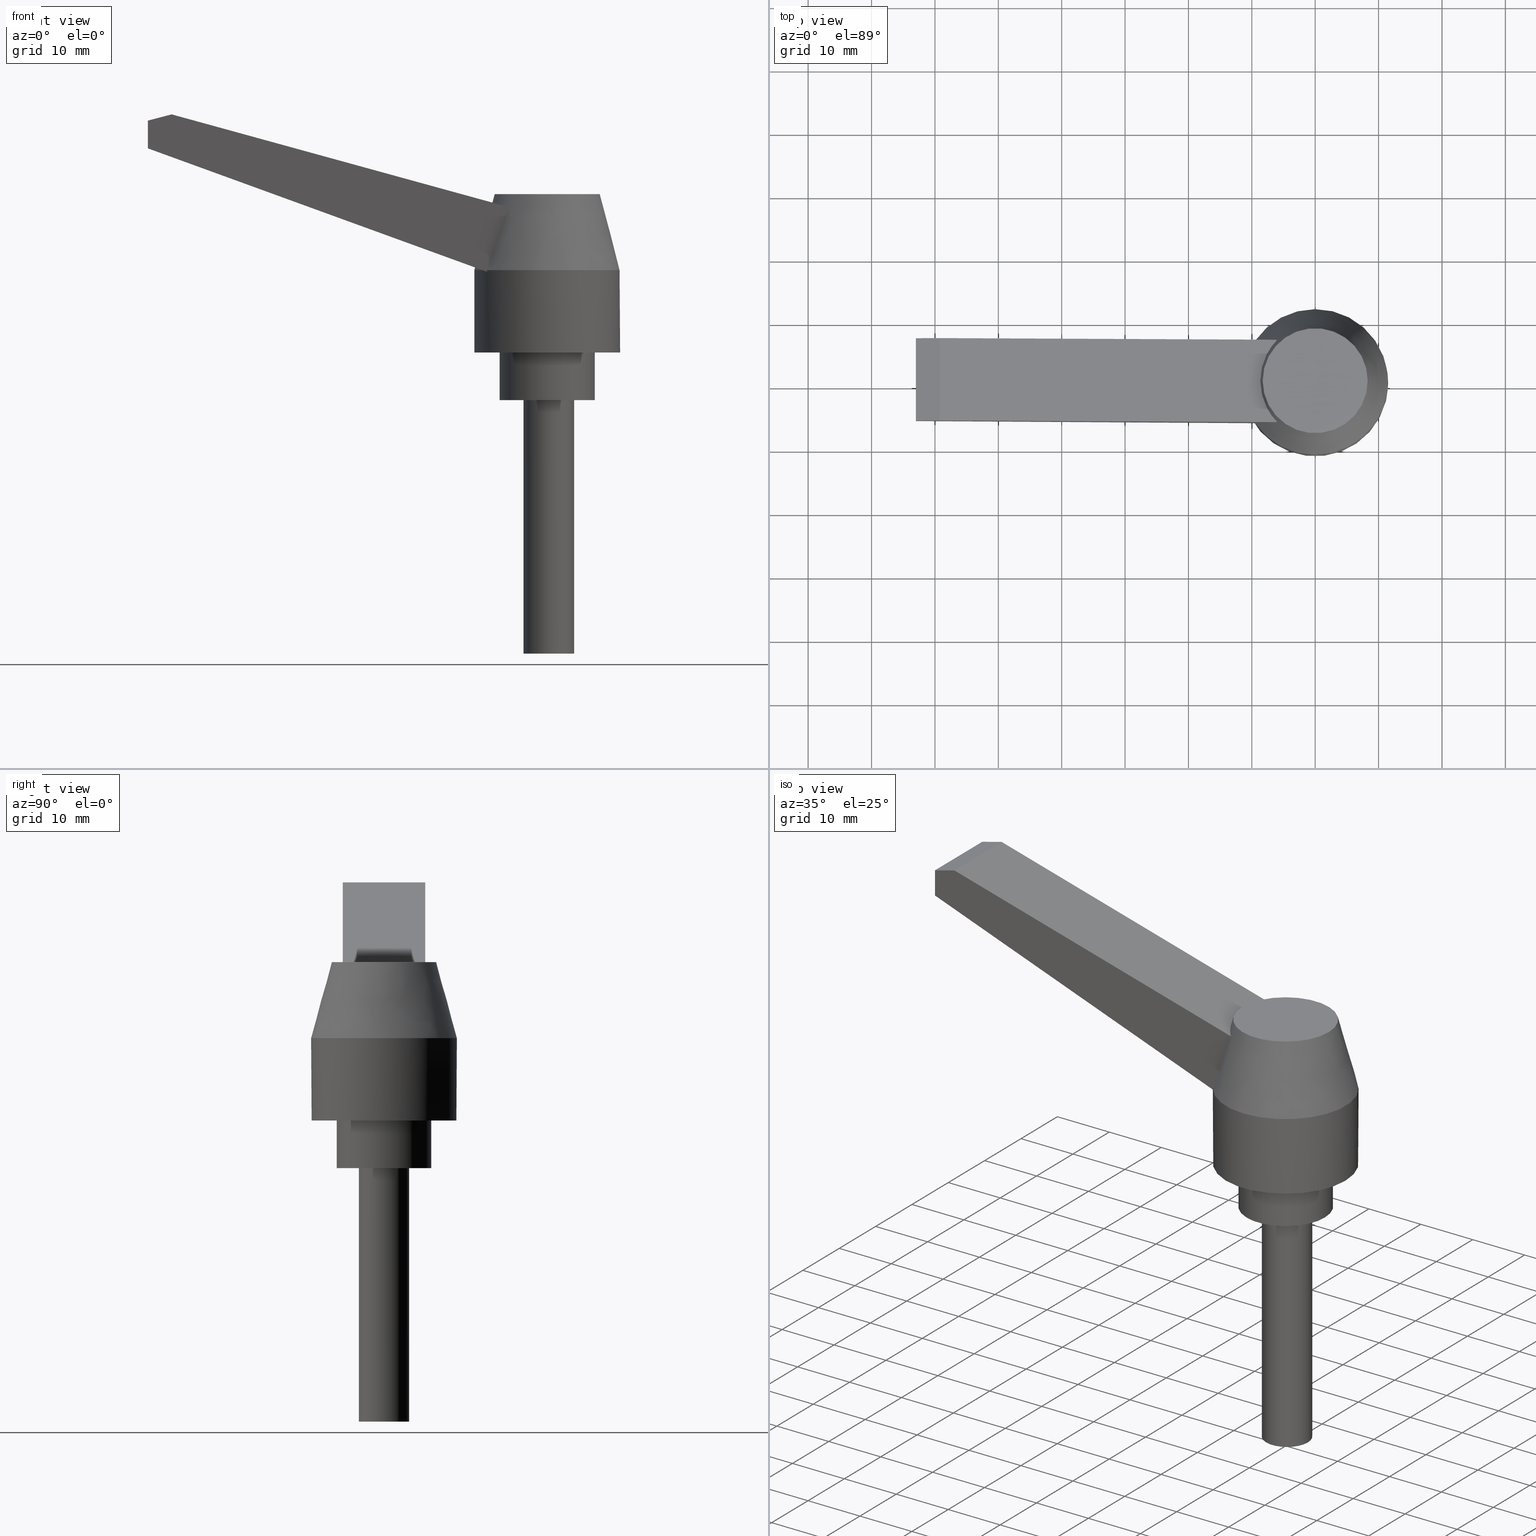
[diagram: canonical four-view strip — front | top / right | iso, engineering-drawing reading convention]
A machine part, canonical four-view strip (front | top / right | iso — engineering-drawing reading convention). The complete STEP part file that produces these views, byte-faithful:
ISO-10303-21;
HEADER;
/****************************************************************
 * Generated by software with PDE/Lib inside                    *
 * PDElib Version v4.4, created Mon 02/23/2004                  *
 * International Technegroup Inc. (www.iti-oh.com)              *
 ****************************************************************/
FILE_DESCRIPTION(('STEP AP203'),'2;1');
FILE_NAME('80LE00003.stp','2011-09-08T18:08:57',(''),(''),'2009.3.110','THINKDESIGN','');
FILE_SCHEMA(('CONFIG_CONTROL_DESIGN'));
ENDSEC;
DATA;
#2=CARTESIAN_POINT('',(0.253749506228030,2.775558E-017,1.421085E-014));
#3=DIRECTION('',(-8.327157E-016,-9.542551E-016,-1.0));
#4=DIRECTION('',(-1.0,-1.110223E-016,8.327157E-016));
#5=AXIS2_PLACEMENT_3D('',#2,#3,#4);
#6=CYLINDRICAL_SURFACE('',#5,4.0);
#7=CARTESIAN_POINT('',(-3.746250493771987,-1.532108E-014,1.421085E-014));
#8=VERTEX_POINT('',#7);
#9=CARTESIAN_POINT('',(4.253749506228030,4.718448E-016,1.087999E-014));
#10=VERTEX_POINT('',#9);
#11=CARTESIAN_POINT('',(0.253749506228030,2.775558E-017,1.421085E-014));
#12=DIRECTION('',(-8.327157E-016,-9.542551E-016,-1.0));
#13=DIRECTION('',(-1.0,-1.110223E-016,8.327157E-016));
#14=AXIS2_PLACEMENT_3D('',#11,#12,#13);
#15=CIRCLE('',#14,4.0);
#16=EDGE_CURVE('',#8,#10,#15,.T.);
#17=ORIENTED_EDGE('',*,*,#16,.T.);
#18=CARTESIAN_POINT('',(0.253749506228030,2.775558E-017,1.421085E-014));
#19=DIRECTION('',(-8.327157E-016,-9.542551E-016,-1.0));
#20=DIRECTION('',(-1.0,-1.110223E-016,8.327157E-016));
#21=AXIS2_PLACEMENT_3D('',#18,#19,#20);
#22=CIRCLE('',#21,4.0);
#23=EDGE_CURVE('',#10,#8,#22,.T.);
#24=ORIENTED_EDGE('',*,*,#23,.T.);
#25=CARTESIAN_POINT('',(-3.746250493771987,-1.777037E-014,-39.999999999999986));
#26=VERTEX_POINT('',#25);
#27=CARTESIAN_POINT('',(-3.746250493771987,-1.532108E-014,1.421085E-014));
#28=DIRECTION('',(0.0,0.0,-1.0));
#29=VECTOR('',#28,40.0);
#30=LINE('',#27,#29);
#31=EDGE_CURVE('',#8,#26,#30,.T.);
#32=ORIENTED_EDGE('',*,*,#31,.T.);
#33=CARTESIAN_POINT('',(4.253749506228029,-1.977449E-015,-39.999999999999986));
#34=VERTEX_POINT('',#33);
#35=CARTESIAN_POINT('',(0.253749506228030,-2.421538E-015,-39.999999999999986));
#36=DIRECTION('',(-8.327157E-016,-9.542551E-016,-1.0));
#37=DIRECTION('',(-1.0,-1.110223E-016,8.327157E-016));
#38=AXIS2_PLACEMENT_3D('',#35,#36,#37);
#39=CIRCLE('',#38,4.0);
#40=EDGE_CURVE('',#34,#26,#39,.T.);
#41=ORIENTED_EDGE('',*,*,#40,.F.);
#42=CARTESIAN_POINT('',(0.253749506228030,-2.421538E-015,-39.999999999999986));
#43=DIRECTION('',(-8.327157E-016,-9.542551E-016,-1.0));
#44=DIRECTION('',(-1.0,-1.110223E-016,8.327157E-016));
#45=AXIS2_PLACEMENT_3D('',#42,#43,#44);
#46=CIRCLE('',#45,4.0);
#47=EDGE_CURVE('',#26,#34,#46,.T.);
#48=ORIENTED_EDGE('',*,*,#47,.F.);
#49=ORIENTED_EDGE('',*,*,#31,.F.);
#50=EDGE_LOOP('',(#17,#24,#32,#41,#48,#49));
#51=FACE_OUTER_BOUND('',#50,.T.);
#52=ADVANCED_FACE('',(#51),#6,.T.);
#53=CARTESIAN_POINT('',(7.044616752715746,-6.790867246487554,1.462668E-014));
#54=DIRECTION('',(0.0,0.0,-1.0));
#55=DIRECTION('',(-1.0,0.0,0.0));
#56=AXIS2_PLACEMENT_3D('',#53,#54,#55);
#57=PLANE('',#56);
#58=ORIENTED_EDGE('',*,*,#23,.F.);
#59=ORIENTED_EDGE('',*,*,#16,.F.);
#60=EDGE_LOOP('',(#58,#59));
#61=FACE_OUTER_BOUND('',#60,.T.);
#62=ADVANCED_FACE('',(#61),#57,.F.);
#63=CARTESIAN_POINT('',(7.044616752715896,-6.790867246487546,-39.999999999999986));
#64=DIRECTION('',(0.0,0.0,-1.0));
#65=DIRECTION('',(-1.0,0.0,0.0));
#66=AXIS2_PLACEMENT_3D('',#63,#64,#65);
#67=PLANE('',#66);
#68=ORIENTED_EDGE('',*,*,#47,.T.);
#69=ORIENTED_EDGE('',*,*,#40,.T.);
#70=EDGE_LOOP('',(#68,#69));
#71=FACE_OUTER_BOUND('',#70,.T.);
#72=ADVANCED_FACE('',(#71),#67,.T.);
#73=CLOSED_SHELL('',(#52,#62,#72));
#74=MANIFOLD_SOLID_BREP('',#73);
#75=CARTESIAN_POINT('',(-16.569219381653024,-16.569219381653102,32.500000000000043));
#76=DIRECTION('',(0.0,0.0,-1.0));
#77=DIRECTION('',(0.0,1.0,0.0));
#78=AXIS2_PLACEMENT_3D('',#75,#76,#77);
#79=PLANE('',#78);
#80=CARTESIAN_POINT('',(8.284609690826677,4.310419E-014,32.500000000000007));
#81=VERTEX_POINT('',#80);
#82=CARTESIAN_POINT('',(-8.284609690826493,1.990051E-015,32.500000000000028));
#83=VERTEX_POINT('',#82);
#84=CARTESIAN_POINT('',(1.205831E-013,4.218442E-014,32.500000000000014));
#85=DIRECTION('',(-8.327157E-016,-1.072679E-015,-1.0));
#86=DIRECTION('',(-1.0,-1.110223E-016,8.327157E-016));
#87=AXIS2_PLACEMENT_3D('',#84,#85,#86);
#88=CIRCLE('',#87,8.284609690826557);
#89=EDGE_CURVE('',#81,#83,#88,.T.);
#90=ORIENTED_EDGE('',*,*,#89,.F.);
#91=CARTESIAN_POINT('',(1.205831E-013,4.218442E-014,32.500000000000014));
#92=DIRECTION('',(-8.327157E-016,-1.072679E-015,-1.0));
#93=DIRECTION('',(-1.0,-1.110223E-016,8.327157E-016));
#94=AXIS2_PLACEMENT_3D('',#91,#92,#93);
#95=CIRCLE('',#94,8.284609690826557);
#96=EDGE_CURVE('',#83,#81,#95,.T.);
#97=ORIENTED_EDGE('',*,*,#96,.F.);
#98=EDGE_LOOP('',(#90,#97));
#99=FACE_OUTER_BOUND('',#98,.T.);
#100=ADVANCED_FACE('',(#99),#79,.F.);
#101=CARTESIAN_POINT('',(14.999999999760041,-14.999999999759879,1.512934E-014));
#102=DIRECTION('',(0.0,0.0,1.0));
#103=DIRECTION('',(0.0,1.0,0.0));
#104=AXIS2_PLACEMENT_3D('',#101,#102,#103);
#105=PLANE('',#104);
#106=CARTESIAN_POINT('',(-7.499999999879919,3.952394E-014,2.842171E-014));
#107=VERTEX_POINT('',#106);
#108=CARTESIAN_POINT('',(7.499999999879975,8.326673E-016,-2.045622E-014));
#109=VERTEX_POINT('',#108);
#110=CARTESIAN_POINT('',(0.0,0.0,0.0));
#111=DIRECTION('',(-2.727496E-015,-1.072679E-015,-1.0));
#112=DIRECTION('',(-1.0,-1.110223E-016,2.727496E-015));
#113=AXIS2_PLACEMENT_3D('',#110,#111,#112);
#114=CIRCLE('',#113,7.499999999879975);
#115=EDGE_CURVE('',#107,#109,#114,.T.);
#116=ORIENTED_EDGE('',*,*,#115,.T.);
#117=CARTESIAN_POINT('',(0.0,0.0,0.0));
#118=DIRECTION('',(-2.727496E-015,-1.072679E-015,-1.0));
#119=DIRECTION('',(-1.0,-1.110223E-016,2.727496E-015));
#120=AXIS2_PLACEMENT_3D('',#117,#118,#119);
#121=CIRCLE('',#120,7.499999999879975);
#122=EDGE_CURVE('',#109,#107,#121,.T.);
#123=ORIENTED_EDGE('',*,*,#122,.T.);
#124=EDGE_LOOP('',(#116,#123));
#125=FACE_OUTER_BOUND('',#124,.T.);
#126=ADVANCED_FACE('',(#125),#105,.F.);
#127=CARTESIAN_POINT('',(0.0,0.0,0.0));
#128=DIRECTION('',(-2.727496E-015,-1.072679E-015,-1.0));
#129=DIRECTION('',(-1.0,-1.110223E-016,2.727496E-015));
#130=AXIS2_PLACEMENT_3D('',#127,#128,#129);
#131=CYLINDRICAL_SURFACE('',#130,7.499999999879975);
#132=CARTESIAN_POINT('',(-7.499999999879919,3.998318E-014,7.500000000000028));
#133=VERTEX_POINT('',#132);
#134=CARTESIAN_POINT('',(-7.499999999879919,3.952394E-014,2.842171E-014));
#135=DIRECTION('',(0.0,0.0,1.0));
#136=VECTOR('',#135,7.500000000000000);
#137=LINE('',#134,#136);
#138=EDGE_CURVE('',#107,#133,#137,.T.);
#139=ORIENTED_EDGE('',*,*,#138,.T.);
#140=CARTESIAN_POINT('',(7.499999999879975,1.291910E-015,7.500000000000008));
#141=VERTEX_POINT('',#140);
#142=CARTESIAN_POINT('',(0.0,4.592425E-016,7.500000000000014));
#143=DIRECTION('',(-8.327157E-016,-1.072679E-015,-1.0));
#144=DIRECTION('',(-1.0,-1.110223E-016,8.327157E-016));
#145=AXIS2_PLACEMENT_3D('',#142,#143,#144);
#146=CIRCLE('',#145,7.499999999879975);
#147=EDGE_CURVE('',#133,#141,#146,.T.);
#148=ORIENTED_EDGE('',*,*,#147,.T.);
#149=CARTESIAN_POINT('',(0.0,4.592425E-016,7.500000000000014));
#150=DIRECTION('',(-8.327157E-016,-1.072679E-015,-1.0));
#151=DIRECTION('',(-1.0,-1.110223E-016,8.327157E-016));
#152=AXIS2_PLACEMENT_3D('',#149,#150,#151);
#153=CIRCLE('',#152,7.499999999879975);
#154=EDGE_CURVE('',#141,#133,#153,.T.);
#155=ORIENTED_EDGE('',*,*,#154,.T.);
#156=ORIENTED_EDGE('',*,*,#138,.F.);
#157=ORIENTED_EDGE('',*,*,#122,.F.);
#158=ORIENTED_EDGE('',*,*,#115,.F.);
#159=EDGE_LOOP('',(#139,#148,#155,#156,#157,#158));
#160=FACE_OUTER_BOUND('',#159,.T.);
#161=ADVANCED_FACE('',(#160),#131,.T.);
#162=CARTESIAN_POINT('',(23.000000000000025,-23.000000000000021,7.500000000000030));
#163=DIRECTION('',(0.0,0.0,1.0));
#164=DIRECTION('',(0.0,1.0,0.0));
#165=AXIS2_PLACEMENT_3D('',#162,#163,#164);
#166=PLANE('',#165);
#167=CARTESIAN_POINT('',(-11.500000000000011,-4.289359E-016,7.500000000000028));
#168=VERTEX_POINT('',#167);
#169=CARTESIAN_POINT('',(11.500000000000000,1.735999E-015,7.499999999999976));
#170=VERTEX_POINT('',#169);
#171=CARTESIAN_POINT('',(0.0,4.592425E-016,7.500000000000000));
#172=DIRECTION('',(-2.068442E-015,-1.072679E-015,-1.0));
#173=DIRECTION('',(-1.0,-1.110223E-016,2.068442E-015));
#174=AXIS2_PLACEMENT_3D('',#171,#172,#173);
#175=CIRCLE('',#174,11.500000000000000);
#176=EDGE_CURVE('',#168,#170,#175,.T.);
#177=ORIENTED_EDGE('',*,*,#176,.T.);
#178=CARTESIAN_POINT('',(0.0,4.592425E-016,7.500000000000000));
#179=DIRECTION('',(-2.068442E-015,-1.072679E-015,-1.0));
#180=DIRECTION('',(-1.0,-1.110223E-016,2.068442E-015));
#181=AXIS2_PLACEMENT_3D('',#178,#179,#180);
#182=CIRCLE('',#181,11.500000000000000);
#183=EDGE_CURVE('',#170,#168,#182,.T.);
#184=ORIENTED_EDGE('',*,*,#183,.T.);
#185=EDGE_LOOP('',(#177,#184));
#186=FACE_OUTER_BOUND('',#185,.T.);
#187=ORIENTED_EDGE('',*,*,#154,.F.);
#188=ORIENTED_EDGE('',*,*,#147,.F.);
#189=EDGE_LOOP('',(#187,#188));
#190=FACE_BOUND('',#189,.T.);
#191=ADVANCED_FACE('',(#186,#190),#166,.F.);
#192=CARTESIAN_POINT('',(0.0,4.592425E-016,7.500000000000000));
#193=DIRECTION('',(-2.068442E-015,-1.072679E-015,-1.0));
#194=DIRECTION('',(-1.0,-1.110223E-016,2.068442E-015));
#195=AXIS2_PLACEMENT_3D('',#192,#193,#194);
#196=CYLINDRICAL_SURFACE('',#195,11.500000000000000);
#197=ORIENTED_EDGE('',*,*,#183,.F.);
#198=ORIENTED_EDGE('',*,*,#176,.F.);
#199=CARTESIAN_POINT('',(-11.500000000000011,3.670845E-016,20.500000000000028));
#200=VERTEX_POINT('',#199);
#201=CARTESIAN_POINT('',(-11.500000000000011,-4.289359E-016,7.500000000000028));
#202=DIRECTION('',(0.0,0.0,1.0));
#203=VECTOR('',#202,13.0);
#204=LINE('',#201,#203);
#205=EDGE_CURVE('',#168,#200,#204,.T.);
#206=ORIENTED_EDGE('',*,*,#205,.T.);
#207=CARTESIAN_POINT('',(-10.208130721623393,5.295664941274871,20.500000000000014));
#208=VERTEX_POINT('',#207);
#209=CARTESIAN_POINT('',(1.205831E-013,4.144963E-014,20.500000000000000));
#210=DIRECTION('',(-2.068442E-015,-1.072679E-015,-1.0));
#211=DIRECTION('',(-1.0,-1.110223E-016,2.068442E-015));
#212=AXIS2_PLACEMENT_3D('',#209,#210,#211);
#213=CIRCLE('',#212,11.500000000000028);
#214=EDGE_CURVE('',#200,#208,#213,.T.);
#215=ORIENTED_EDGE('',*,*,#214,.T.);
#216=CARTESIAN_POINT('',(-9.486832980505104,6.499999999999932,20.237469092189500));
#217=VERTEX_POINT('',#216);
#218=CARTESIAN_POINT('',(0.0,9.154488E-016,16.784544269830704));
#219=DIRECTION('',(-0.342020143325670,-1.045960E-015,-0.939692620785908));
#220=DIRECTION('',(-0.939692620785908,2.429873E-016,0.342020143325670));
#221=AXIS2_PLACEMENT_3D('',#218,#219,#220);
#222=ELLIPSE('',#221,12.238044383472985,11.500000000000000);
#223=EDGE_CURVE('',#208,#217,#222,.T.);
#224=ORIENTED_EDGE('',*,*,#223,.T.);
#225=CARTESIAN_POINT('',(-9.486832980505144,6.499999999999973,20.500000000000014));
#226=VERTEX_POINT('',#225);
#227=CARTESIAN_POINT('',(-9.486832980505117,6.499999999999986,20.237469092189500));
#228=DIRECTION('',(0.0,0.0,1.0));
#229=VECTOR('',#228,0.262530907810515);
#230=LINE('',#227,#229);
#231=EDGE_CURVE('',#217,#226,#230,.T.);
#232=ORIENTED_EDGE('',*,*,#231,.T.);
#233=CARTESIAN_POINT('',(-9.486832980505144,-6.500000000000132,20.500000000000028));
#234=VERTEX_POINT('',#233);
#235=CARTESIAN_POINT('',(1.205831E-013,4.144963E-014,20.500000000000000));
#236=DIRECTION('',(-2.068442E-015,-1.072679E-015,-1.0));
#237=DIRECTION('',(-1.0,-1.110223E-016,2.068442E-015));
#238=AXIS2_PLACEMENT_3D('',#235,#236,#237);
#239=CIRCLE('',#238,11.500000000000028);
#240=EDGE_CURVE('',#226,#234,#239,.T.);
#241=ORIENTED_EDGE('',*,*,#240,.T.);
#242=CARTESIAN_POINT('',(-9.486832980505023,-6.500000000000092,20.237469092189514));
#243=VERTEX_POINT('',#242);
#244=CARTESIAN_POINT('',(-9.486832980505117,-6.500000000000119,20.237469092189514));
#245=DIRECTION('',(0.0,0.0,1.0));
#246=VECTOR('',#245,0.262530907810515);
#247=LINE('',#244,#246);
#248=EDGE_CURVE('',#243,#234,#247,.T.);
#249=ORIENTED_EDGE('',*,*,#248,.F.);
#250=CARTESIAN_POINT('',(-10.208130721623391,-5.295664941275032,20.500000000000028));
#251=VERTEX_POINT('',#250);
#252=CARTESIAN_POINT('',(0.0,9.154488E-016,16.784544269830704));
#253=DIRECTION('',(-0.342020143325670,-1.045960E-015,-0.939692620785908));
#254=DIRECTION('',(-0.939692620785908,2.429873E-016,0.342020143325670));
#255=AXIS2_PLACEMENT_3D('',#252,#253,#254);
#256=ELLIPSE('',#255,12.238044383472985,11.500000000000000);
#257=EDGE_CURVE('',#243,#251,#256,.T.);
#258=ORIENTED_EDGE('',*,*,#257,.T.);
#259=CARTESIAN_POINT('',(1.205831E-013,4.144963E-014,20.500000000000000));
#260=DIRECTION('',(-2.068442E-015,-1.072679E-015,-1.0));
#261=DIRECTION('',(-1.0,-1.110223E-016,2.068442E-015));
#262=AXIS2_PLACEMENT_3D('',#259,#260,#261);
#263=CIRCLE('',#262,11.500000000000028);
#264=EDGE_CURVE('',#251,#200,#263,.T.);
#265=ORIENTED_EDGE('',*,*,#264,.T.);
#266=ORIENTED_EDGE('',*,*,#205,.F.);
#267=EDGE_LOOP('',(#197,#198,#206,#215,#224,#232,#241,#249,#258,#265,#266));
#268=FACE_OUTER_BOUND('',#267,.T.);
#269=ADVANCED_FACE('',(#268),#196,.T.);
#270=CARTESIAN_POINT('',(-11.500000000000011,3.670845E-016,20.500000000000028));
#271=CARTESIAN_POINT('',(-11.500000000000039,11.500000000000110,20.500000000000018));
#272=CARTESIAN_POINT('',(7.115116E-014,11.500000000000140,20.499999999999996));
#273=CARTESIAN_POINT('',(11.500000000000179,11.500000000000171,20.499999999999975));
#274=CARTESIAN_POINT('',(11.500000000000210,5.825746E-014,20.499999999999986));
#275=CARTESIAN_POINT('',(11.500000000000238,-11.500000000000052,20.499999999999996));
#276=CARTESIAN_POINT('',(1.290415E-013,-11.500000000000080,20.500000000000018));
#277=CARTESIAN_POINT('',(-11.499999999999982,-11.500000000000110,20.500000000000039));
#278=CARTESIAN_POINT('',(-11.500000000000011,3.670845E-016,20.500000000000028));
#279=CARTESIAN_POINT('',(-8.284609690826528,1.351526E-014,32.500000000000028));
#280=CARTESIAN_POINT('',(-8.284609690826557,8.284609690826663,32.500000000000021));
#281=CARTESIAN_POINT('',(9.191394E-014,8.284609690826692,32.500000000000007));
#282=CARTESIAN_POINT('',(8.284609690826741,8.284609690826720,32.499999999999993));
#283=CARTESIAN_POINT('',(8.284609690826770,7.085358E-014,32.500000000000000));
#284=CARTESIAN_POINT('',(8.284609690826798,-8.284609690826578,32.500000000000007));
#285=CARTESIAN_POINT('',(1.492523E-013,-8.284609690826606,32.500000000000021));
#286=CARTESIAN_POINT('',(-8.284609690826500,-8.284609690826635,32.500000000000036));
#287=CARTESIAN_POINT('',(-8.284609690826528,1.351526E-014,32.500000000000028));
#295=(BOUNDED_SURFACE()B_SPLINE_SURFACE(2,1,((#270,#279),(#271,#280),(#272,#281),(#273,#282),(#274,#283),(#275,#284),(#276,#285),(#277,#286),(#278,#287)),.UNSPECIFIED.,.T.,.F.,.U.)B_SPLINE_SURFACE_WITH_KNOTS((3,2,2,2,3),(2,2),(0.0,0.250000000000000,0.500000000000000,0.750000000000000,1.0),(0.0,12.423314164920997),.UNSPECIFIED.)GEOMETRIC_REPRESENTATION_ITEM()RATIONAL_B_SPLINE_SURFACE(((1.0,1.0),(0.707106781186548,0.707106781186548),(1.0,1.0),(0.707106781186548,0.707106781186548),(1.0,1.0),(0.707106781186548,0.707106781186548),(1.0,1.0),(0.707106781186548,0.707106781186548),(1.0,1.0)))REPRESENTATION_ITEM('')SURFACE());
#296=CARTESIAN_POINT('',(-8.643206395600316,-3.894810E-014,31.161698878357612));
#297=VERTEX_POINT('',#296);
#298=CARTESIAN_POINT('',(-8.643206395600283,1.204891E-014,31.161698878357605));
#299=DIRECTION('',(0.258819045102522,1.058347E-015,0.965925826289068));
#300=VECTOR('',#299,1.385511273452499);
#301=LINE('',#298,#300);
#302=EDGE_CURVE('',#297,#83,#301,.T.);
#303=ORIENTED_EDGE('',*,*,#302,.F.);
#304=CARTESIAN_POINT('',(-5.989480691774037,-6.499999999995148,30.431840536688341));
#305=VERTEX_POINT('',#304);
#306=CARTESIAN_POINT('',(-8.643206395600316,-3.894810E-014,31.161698878357598));
#307=CARTESIAN_POINT('',(-8.643206395600316,-0.506302708553347,31.161698878357598));
#308=CARTESIAN_POINT('',(-8.539626593121721,-1.769296278668458,31.133211162856824));
#309=CARTESIAN_POINT('',(-7.984379968311004,-3.656764436087019,30.980500812944641));
#310=CARTESIAN_POINT('',(-7.040074404947722,-5.309362675028818,30.720786973071725));
#311=CARTESIAN_POINT('',(-6.303491650776449,-6.179184693648446,30.518203463147103));
#312=CARTESIAN_POINT('',(-5.989480691774358,-6.499999999997559,30.431840536687346));
#313=B_SPLINE_CURVE_WITH_KNOTS('',3,(#306,#307,#308,#309,#310,#311,#312),.UNSPECIFIED.,.F.,.U.,(4,1,1,1,4),(0.0,1.520719268580641,3.785791119431691,5.874898477297450,7.247546618980997),.UNSPECIFIED.);
#314=EDGE_CURVE('',#297,#305,#313,.T.);
#315=ORIENTED_EDGE('',*,*,#314,.T.);
#316=CARTESIAN_POINT('',(-9.486832980505144,-6.500000000000132,20.500000000000028));
#317=CARTESIAN_POINT('',(-8.924129740569736,-6.500000000000132,22.232408786132851));
#318=CARTESIAN_POINT('',(-8.107705780670552,-6.499999999999328,24.680204736521603));
#319=CARTESIAN_POINT('',(-6.928262411578024,-6.500000000001096,27.986617058895817));
#320=CARTESIAN_POINT('',(-6.331554087225999,-6.499999999997559,29.566744910999788));
#321=CARTESIAN_POINT('',(-5.989480691774358,-6.499999999997559,30.431840536687346));
#322=B_SPLINE_CURVE_WITH_KNOTS('',3,(#316,#317,#318,#319,#320,#321),.UNSPECIFIED.,.F.,.U.,(4,1,1,4),(0.0,5.464623178458854,7.740353972626606,10.531241818890766),.UNSPECIFIED.);
#323=EDGE_CURVE('',#234,#305,#322,.T.);
#324=ORIENTED_EDGE('',*,*,#323,.F.);
#325=ORIENTED_EDGE('',*,*,#240,.F.);
#326=CARTESIAN_POINT('',(-5.989480691774158,6.499999999994949,30.431840536688327));
#327=VERTEX_POINT('',#326);
#328=CARTESIAN_POINT('',(-9.486832980505144,6.499999999999973,20.500000000000014));
#329=CARTESIAN_POINT('',(-8.924129740569738,6.499999999999973,22.232408786132837));
#330=CARTESIAN_POINT('',(-8.107705780670512,6.499999999999772,24.680204736521617));
#331=CARTESIAN_POINT('',(-6.928262411578147,6.500000000000093,27.986617058895462));
#332=CARTESIAN_POINT('',(-6.331554087226160,6.499999999999973,29.566744910999091));
#333=CARTESIAN_POINT('',(-5.989480691774682,6.499999999999973,30.431840536686323));
#334=B_SPLINE_CURVE_WITH_KNOTS('',3,(#328,#329,#330,#331,#332,#333),.UNSPECIFIED.,.F.,.U.,(4,1,1,4),(0.0,5.464623178458854,7.740353972626619,10.531241818889725),.UNSPECIFIED.);
#335=EDGE_CURVE('',#226,#327,#334,.T.);
#336=ORIENTED_EDGE('',*,*,#335,.T.);
#337=CARTESIAN_POINT('',(-8.643206395600316,-3.894810E-014,31.161698878357598));
#338=CARTESIAN_POINT('',(-8.643206395600235,0.506302708553188,31.161698878357598));
#339=CARTESIAN_POINT('',(-8.539626593121721,1.769296278668300,31.133211162856782));
#340=CARTESIAN_POINT('',(-7.984379968311005,3.656764436086861,30.980500812944641));
#341=CARTESIAN_POINT('',(-7.040074404947723,5.309362675028499,30.720786973071711));
#342=CARTESIAN_POINT('',(-6.303491650776449,6.179184693648288,30.518203463147088));
#343=CARTESIAN_POINT('',(-5.989480691774360,6.499999999997401,30.431840536687332));
#344=B_SPLINE_CURVE_WITH_KNOTS('',3,(#337,#338,#339,#340,#341,#342,#343),.UNSPECIFIED.,.F.,.U.,(4,1,1,1,4),(0.0,1.520719268580641,3.785791119431691,5.874898477297473,7.247546618981000),.UNSPECIFIED.);
#345=EDGE_CURVE('',#297,#327,#344,.T.);
#346=ORIENTED_EDGE('',*,*,#345,.F.);
#347=ORIENTED_EDGE('',*,*,#302,.T.);
#348=ORIENTED_EDGE('',*,*,#96,.T.);
#349=ORIENTED_EDGE('',*,*,#89,.T.);
#350=EDGE_LOOP('',(#303,#315,#324,#325,#336,#346,#347,#348,#349));
#351=FACE_OUTER_BOUND('',#350,.T.);
#352=ADVANCED_FACE('',(#351),#295,.F.);
#353=CARTESIAN_POINT('',(4.440892E-016,-6.500000000000132,16.784544269830732));
#354=DIRECTION('',(-0.342020143325670,-1.045960E-015,-0.939692620785908));
#355=DIRECTION('',(-0.939692620785908,2.429873E-016,0.342020143325670));
#356=AXIS2_PLACEMENT_3D('',#353,#354,#355);
#357=PLANE('',#356);
#358=CARTESIAN_POINT('',(-62.999999999999986,-6.500000000000179,39.714669028601548));
#359=VERTEX_POINT('',#358);
#360=CARTESIAN_POINT('',(-62.999999999999986,6.499999999999932,39.714669028601534));
#361=VERTEX_POINT('',#360);
#362=CARTESIAN_POINT('',(-62.999999999999986,-6.500000000000179,39.714669028601548));
#363=DIRECTION('',(0.0,1.0,0.0));
#364=VECTOR('',#363,13.0);
#365=LINE('',#362,#364);
#366=EDGE_CURVE('',#359,#361,#365,.T.);
#367=ORIENTED_EDGE('',*,*,#366,.T.);
#368=CARTESIAN_POINT('',(-9.486832980505103,6.499999999999975,20.237469092189507));
#369=DIRECTION('',(-0.939692620785908,2.339465E-016,0.342020143325670));
#370=VECTOR('',#369,56.947522876937526);
#371=LINE('',#368,#370);
#372=EDGE_CURVE('',#217,#361,#371,.T.);
#373=ORIENTED_EDGE('',*,*,#372,.F.);
#374=ORIENTED_EDGE('',*,*,#223,.F.);
#375=CARTESIAN_POINT('',(-11.385205188379185,3.933177E-016,20.928420069413917));
#376=VERTEX_POINT('',#375);
#377=CARTESIAN_POINT('',(-11.385205188379185,3.933177E-016,20.928420069413917));
#378=CARTESIAN_POINT('',(-11.385205188379185,0.389622418439146,20.928420069413917));
#379=CARTESIAN_POINT('',(-11.341405708508288,1.325237958425406,20.912478362521895));
#380=CARTESIAN_POINT('',(-11.109691372403116,2.769173164005345,20.828141241252482));
#381=CARTESIAN_POINT('',(-10.702807816468274,4.146157300515532,20.680047738100129));
#382=CARTESIAN_POINT('',(-10.362396491330117,4.965625003143130,20.556148148339446));
#383=CARTESIAN_POINT('',(-10.208130721623393,5.295664941274871,20.500000000000014));
#384=B_SPLINE_CURVE_WITH_KNOTS('',3,(#377,#378,#379,#380,#381,#382,#383),.UNSPECIFIED.,.F.,.U.,(4,1,1,1,4),(0.0,1.169337317091274,2.806017722713428,4.384264346576929,5.490487280362336),.UNSPECIFIED.);
#385=EDGE_CURVE('',#376,#208,#384,.T.);
#386=ORIENTED_EDGE('',*,*,#385,.F.);
#387=CARTESIAN_POINT('',(-11.385205188379185,3.933177E-016,20.928420069413917));
#388=CARTESIAN_POINT('',(-11.385205188379185,-0.389622418439306,20.928420069413917));
#389=CARTESIAN_POINT('',(-11.341405708508450,-1.325237958425726,20.912478362521924));
#390=CARTESIAN_POINT('',(-11.109691372403116,-2.769173164005828,20.828141241252439));
#391=CARTESIAN_POINT('',(-10.702807816468273,-4.146157300515693,20.680047738100114));
#392=CARTESIAN_POINT('',(-10.362396491330117,-4.965625003143290,20.556148148339446));
#393=CARTESIAN_POINT('',(-10.208130721623391,-5.295664941275032,20.500000000000028));
#394=B_SPLINE_CURVE_WITH_KNOTS('',3,(#387,#388,#389,#390,#391,#392,#393),.UNSPECIFIED.,.F.,.U.,(4,1,1,1,4),(0.0,1.169337317091274,2.806017722713428,4.384264346576919,5.490487280362337),.UNSPECIFIED.);
#395=EDGE_CURVE('',#376,#251,#394,.T.);
#396=ORIENTED_EDGE('',*,*,#395,.T.);
#397=ORIENTED_EDGE('',*,*,#257,.F.);
#398=CARTESIAN_POINT('',(-9.486832980505103,-6.500000000000130,20.237469092189521));
#399=DIRECTION('',(-0.939692620785908,2.339465E-016,0.342020143325670));
#400=VECTOR('',#399,56.947522876937526);
#401=LINE('',#398,#400);
#402=EDGE_CURVE('',#243,#359,#401,.T.);
#403=ORIENTED_EDGE('',*,*,#402,.T.);
#404=EDGE_LOOP('',(#367,#373,#374,#386,#396,#397,#403));
#405=FACE_OUTER_BOUND('',#404,.T.);
#406=ADVANCED_FACE('',(#405),#357,.T.);
#407=CARTESIAN_POINT('',(-62.999999999999986,-6.500000000000179,39.714669028601548));
#408=DIRECTION('',(-1.0,0.0,0.0));
#409=DIRECTION('',(0.0,0.0,1.0));
#410=AXIS2_PLACEMENT_3D('',#407,#408,#409);
#411=PLANE('',#410);
#412=CARTESIAN_POINT('',(-62.999999999999986,-6.500000000000179,44.100006688642210));
#413=VERTEX_POINT('',#412);
#414=CARTESIAN_POINT('',(-62.999999999999986,-6.500000000000179,39.714669028601548));
#415=DIRECTION('',(0.0,0.0,1.0));
#416=VECTOR('',#415,4.385337660040676);
#417=LINE('',#414,#416);
#418=EDGE_CURVE('',#359,#413,#417,.T.);
#419=ORIENTED_EDGE('',*,*,#418,.T.);
#420=CARTESIAN_POINT('',(-62.999999999999986,6.499999999999932,44.100006688642210));
#421=VERTEX_POINT('',#420);
#422=CARTESIAN_POINT('',(-62.999999999999986,-6.500000000000179,44.100006688642210));
#423=DIRECTION('',(0.0,1.0,0.0));
#424=VECTOR('',#423,13.0);
#425=LINE('',#422,#424);
#426=EDGE_CURVE('',#413,#421,#425,.T.);
#427=ORIENTED_EDGE('',*,*,#426,.T.);
#428=CARTESIAN_POINT('',(-62.999999999999986,6.499999999999932,39.714669028601534));
#429=DIRECTION('',(0.0,0.0,1.0));
#430=VECTOR('',#429,4.385337660040676);
#431=LINE('',#428,#430);
#432=EDGE_CURVE('',#361,#421,#431,.T.);
#433=ORIENTED_EDGE('',*,*,#432,.F.);
#434=ORIENTED_EDGE('',*,*,#366,.F.);
#435=EDGE_LOOP('',(#419,#427,#433,#434));
#436=FACE_OUTER_BOUND('',#435,.T.);
#437=ADVANCED_FACE('',(#436),#411,.T.);
#438=CARTESIAN_POINT('',(-62.999999999999986,-6.500000000000179,44.100006688642210));
#439=DIRECTION('',(-0.252442048382720,1.009910E-015,0.967612015328632));
#440=DIRECTION('',(0.967612015328632,2.930134E-016,0.252442048382720));
#441=AXIS2_PLACEMENT_3D('',#438,#439,#440);
#442=PLANE('',#441);
#443=CARTESIAN_POINT('',(-59.246615726999266,-6.500000000000132,45.079233898757010));
#444=VERTEX_POINT('',#443);
#445=CARTESIAN_POINT('',(-62.999999999999986,-6.500000000000179,44.100006688642210));
#446=DIRECTION('',(0.967612015328632,2.289699E-016,0.252442048382721));
#447=VECTOR('',#446,3.879017843454473);
#448=LINE('',#445,#447);
#449=EDGE_CURVE('',#413,#444,#448,.T.);
#450=ORIENTED_EDGE('',*,*,#449,.T.);
#451=CARTESIAN_POINT('',(-59.246615726999266,6.499999999999967,45.079233898756982));
#452=VERTEX_POINT('',#451);
#453=CARTESIAN_POINT('',(-59.246615726999266,-6.500000000000132,45.079233898757010));
#454=DIRECTION('',(0.0,1.0,0.0));
#455=VECTOR('',#454,13.0);
#456=LINE('',#453,#455);
#457=EDGE_CURVE('',#444,#452,#456,.T.);
#458=ORIENTED_EDGE('',*,*,#457,.T.);
#459=CARTESIAN_POINT('',(-62.999999999999986,6.499999999999932,44.100006688642210));
#460=DIRECTION('',(0.967612015328632,2.289699E-016,0.252442048382721));
#461=VECTOR('',#460,3.879017843454473);
#462=LINE('',#459,#461);
#463=EDGE_CURVE('',#421,#452,#462,.T.);
#464=ORIENTED_EDGE('',*,*,#463,.F.);
#465=ORIENTED_EDGE('',*,*,#426,.F.);
#466=EDGE_LOOP('',(#450,#458,#464,#465));
#467=FACE_OUTER_BOUND('',#466,.T.);
#468=ADVANCED_FACE('',(#467),#442,.T.);
#469=CARTESIAN_POINT('',(-59.246615726999266,-6.500000000000132,45.079233898757010));
#470=DIRECTION('',(0.265184780781500,1.063716E-015,0.964197610473013));
#471=DIRECTION('',(0.964197610473013,-1.272602E-016,-0.265184780781500));
#472=AXIS2_PLACEMENT_3D('',#469,#470,#471);
#473=PLANE('',#472);
#474=CARTESIAN_POINT('',(-59.246615726999266,-6.500000000000132,45.079233898757010));
#475=DIRECTION('',(0.964197610473013,-1.286407E-016,-0.265184780781500));
#476=VECTOR('',#475,55.234668139335724);
#477=LINE('',#474,#476);
#478=EDGE_CURVE('',#444,#305,#477,.T.);
#479=ORIENTED_EDGE('',*,*,#478,.T.);
#480=ORIENTED_EDGE('',*,*,#314,.F.);
#481=ORIENTED_EDGE('',*,*,#345,.T.);
#482=CARTESIAN_POINT('',(-59.246615726999266,6.499999999999967,45.079233898756982));
#483=DIRECTION('',(0.964197610473013,-1.286407E-016,-0.265184780781500));
#484=VECTOR('',#483,55.234668139335696);
#485=LINE('',#482,#484);
#486=EDGE_CURVE('',#452,#327,#485,.T.);
#487=ORIENTED_EDGE('',*,*,#486,.F.);
#488=ORIENTED_EDGE('',*,*,#457,.F.);
#489=EDGE_LOOP('',(#479,#480,#481,#487,#488));
#490=FACE_OUTER_BOUND('',#489,.T.);
#491=ADVANCED_FACE('',(#490),#473,.T.);
#492=CARTESIAN_POINT('',(6.301868280225002,-6.500000000000092,13.953207026651114));
#493=DIRECTION('',(0.0,1.0,0.0));
#494=DIRECTION('',(-1.0,0.0,0.0));
#495=AXIS2_PLACEMENT_3D('',#492,#493,#494);
#496=PLANE('',#495);
#497=ORIENTED_EDGE('',*,*,#402,.F.);
#498=ORIENTED_EDGE('',*,*,#248,.T.);
#499=ORIENTED_EDGE('',*,*,#323,.T.);
#500=ORIENTED_EDGE('',*,*,#478,.F.);
#501=ORIENTED_EDGE('',*,*,#449,.F.);
#502=ORIENTED_EDGE('',*,*,#418,.F.);
#503=EDGE_LOOP('',(#497,#498,#499,#500,#501,#502));
#504=FACE_OUTER_BOUND('',#503,.T.);
#505=ADVANCED_FACE('',(#504),#496,.F.);
#506=CARTESIAN_POINT('',(6.301868280224920,6.499999999999933,13.953207026651100));
#507=DIRECTION('',(0.0,1.0,0.0));
#508=DIRECTION('',(-1.0,0.0,0.0));
#509=AXIS2_PLACEMENT_3D('',#506,#507,#508);
#510=PLANE('',#509);
#511=ORIENTED_EDGE('',*,*,#432,.T.);
#512=ORIENTED_EDGE('',*,*,#463,.T.);
#513=ORIENTED_EDGE('',*,*,#486,.T.);
#514=ORIENTED_EDGE('',*,*,#335,.F.);
#515=ORIENTED_EDGE('',*,*,#231,.F.);
#516=ORIENTED_EDGE('',*,*,#372,.T.);
#517=EDGE_LOOP('',(#511,#512,#513,#514,#515,#516));
#518=FACE_OUTER_BOUND('',#517,.T.);
#519=ADVANCED_FACE('',(#518),#510,.T.);
#520=CARTESIAN_POINT('',(-10.207406633884135,-5.297060487717539,20.500000000000028));
#521=CARTESIAN_POINT('',(-12.956278195186993,-2.664535E-015,20.500000000000028));
#522=CARTESIAN_POINT('',(-10.207406633884162,5.297060487717547,20.500000000000021));
#523=CARTESIAN_POINT('',(-10.105483285809397,-5.244168097002902,20.928552125144321));
#524=CARTESIAN_POINT('',(-12.826906720178098,-1.776357E-015,20.928552125144321));
#525=CARTESIAN_POINT('',(-10.105483285809424,5.244168097002909,20.928552125144314));
#533=(BOUNDED_SURFACE()B_SPLINE_SURFACE(2,1,((#520,#523),(#521,#524),(#522,#525)),.UNSPECIFIED.,.F.,.F.,.U.)B_SPLINE_SURFACE_WITH_KNOTS((3,3),(2,2),(0.0,1.0),(0.0,0.443669807226009),.UNSPECIFIED.)GEOMETRIC_REPRESENTATION_ITEM()RATIONAL_B_SPLINE_SURFACE(((1.0,1.0),(0.887600576859491,0.887600576859491),(1.0,1.0)))REPRESENTATION_ITEM('')SURFACE());
#534=ORIENTED_EDGE('',*,*,#264,.F.);
#535=ORIENTED_EDGE('',*,*,#395,.F.);
#536=ORIENTED_EDGE('',*,*,#385,.T.);
#537=ORIENTED_EDGE('',*,*,#214,.F.);
#538=EDGE_LOOP('',(#534,#535,#536,#537));
#539=FACE_OUTER_BOUND('',#538,.T.);
#540=ADVANCED_FACE('',(#539),#533,.F.);
#541=CLOSED_SHELL('',(#100,#126,#161,#191,#269,#352,#406,#437,#468,#491,#505,#519,#540));
#542=MANIFOLD_SOLID_BREP('',#541);
#548=(NAMED_UNIT(*)PLANE_ANGLE_UNIT()SI_UNIT($,.RADIAN.));
#549=DIMENSIONAL_EXPONENTS(0.0,0.0,0.0,0.0,0.0,0.0,0.0);
#550=PLANE_ANGLE_MEASURE_WITH_UNIT(PLANE_ANGLE_MEASURE(0.017453292500000),#548);
#554=(CONVERSION_BASED_UNIT('DEGREE',#550)NAMED_UNIT(#549)PLANE_ANGLE_UNIT());
#558=(NAMED_UNIT(*)SI_UNIT($,.STERADIAN.)SOLID_ANGLE_UNIT());
#562=(LENGTH_UNIT()NAMED_UNIT(*)SI_UNIT(.MILLI.,.METRE.));
#564=UNCERTAINTY_MEASURE_WITH_UNIT(LENGTH_MEASURE(0.001000000000000),#562,'DISTANCE_ACCURACY_VALUE','');
#566=(GEOMETRIC_REPRESENTATION_CONTEXT(3)GLOBAL_UNCERTAINTY_ASSIGNED_CONTEXT((#564))GLOBAL_UNIT_ASSIGNED_CONTEXT((#554,#558,#562))REPRESENTATION_CONTEXT('thinkdesign','2009.3.110'));
#567=ADVANCED_BREP_SHAPE_REPRESENTATION('',(#74,#542),#566);
#568=APPLICATION_CONTEXT('configuration controlled 3D designs of mechanical parts and assemblies');
#569=APPLICATION_PROTOCOL_DEFINITION('International Standard','config_control_design',1995,#568);
#570=MECHANICAL_CONTEXT('None',#568,'mechanical');
#571=PRODUCT('None','None','None',(#570));
#572=PRODUCT_RELATED_PRODUCT_CATEGORY('detail',$,(#571));
#573=PRODUCT_CATEGORY('part',$);
#574=PRODUCT_CATEGORY_RELATIONSHIP('None','None',#573,#572);
#575=PERSON('PERSON1','None','None',$,$,$);
#576=ORGANIZATION('','None','None');
#577=PERSON_AND_ORGANIZATION(#575,#576);
#578=PERSON_AND_ORGANIZATION_ROLE('design_owner');
#579=CC_DESIGN_PERSON_AND_ORGANIZATION_ASSIGNMENT(#577,#578,(#571));
#580=PRODUCT_DEFINITION_FORMATION_WITH_SPECIFIED_SOURCE('None','None',#571,.NOT_KNOWN.);
#581=PERSON('PERSON2','None','None',$,$,$);
#582=ORGANIZATION('','None','None');
#583=PERSON_AND_ORGANIZATION(#581,#582);
#584=PERSON_AND_ORGANIZATION_ROLE('creator');
#585=CC_DESIGN_PERSON_AND_ORGANIZATION_ASSIGNMENT(#583,#584,(#580));
#586=PERSON('PERSON3','None','None',$,$,$);
#587=ORGANIZATION('','None','None');
#588=PERSON_AND_ORGANIZATION(#586,#587);
#589=PERSON_AND_ORGANIZATION_ROLE('part_supplier');
#590=CC_DESIGN_PERSON_AND_ORGANIZATION_ASSIGNMENT(#588,#589,(#580));
#591=APPROVAL_STATUS('approved');
#592=APPROVAL(#591,'None');
#593=PERSON('PERSON4','None','None',$,$,$);
#594=ORGANIZATION('','None','None');
#595=PERSON_AND_ORGANIZATION(#593,#594);
#596=APPROVAL_ROLE('None');
#597=APPROVAL_PERSON_ORGANIZATION(#595,#592,#596);
#598=CALENDAR_DATE(2011,8,9);
#599=COORDINATED_UNIVERSAL_TIME_OFFSET(0,0,.AHEAD.);
#600=LOCAL_TIME(18,8,57.0,#599);
#601=DATE_AND_TIME(#598,#600);
#602=APPROVAL_DATE_TIME(#601,#592);
#603=CC_DESIGN_APPROVAL(#592,(#580));
#604=SECURITY_CLASSIFICATION_LEVEL('unclassified');
#605=SECURITY_CLASSIFICATION('None','None',#604);
#606=CC_DESIGN_SECURITY_CLASSIFICATION(#605,(#580));
#607=APPROVAL_STATUS('approved');
#608=APPROVAL(#607,'None');
#609=PERSON('PERSON5','None','None',$,$,$);
#610=ORGANIZATION('','None','None');
#611=PERSON_AND_ORGANIZATION(#609,#610);
#612=APPROVAL_ROLE('None');
#613=APPROVAL_PERSON_ORGANIZATION(#611,#608,#612);
#614=CALENDAR_DATE(2011,8,9);
#615=COORDINATED_UNIVERSAL_TIME_OFFSET(0,0,.AHEAD.);
#616=LOCAL_TIME(18,8,57.0,#615);
#617=DATE_AND_TIME(#614,#616);
#618=APPROVAL_DATE_TIME(#617,#608);
#619=CC_DESIGN_APPROVAL(#608,(#605));
#620=PERSON('PERSON6','None','None',$,$,$);
#621=ORGANIZATION('','None','None');
#622=PERSON_AND_ORGANIZATION(#620,#621);
#623=PERSON_AND_ORGANIZATION_ROLE('classification_officer');
#624=CC_DESIGN_PERSON_AND_ORGANIZATION_ASSIGNMENT(#622,#623,(#605));
#625=DATE_TIME_ROLE('classification_date');
#626=CALENDAR_DATE(2011,8,9);
#627=COORDINATED_UNIVERSAL_TIME_OFFSET(0,0,.AHEAD.);
#628=LOCAL_TIME(18,8,57.0,#627);
#629=DATE_AND_TIME(#626,#628);
#630=CC_DESIGN_DATE_AND_TIME_ASSIGNMENT(#629,#625,(#605));
#631=DESIGN_CONTEXT('part definition',#568,'design');
#632=DOCUMENT_TYPE('cad_filename');
#633=DOCUMENT('None','None','None',#632);
#634=PRODUCT_DEFINITION_WITH_ASSOCIATED_DOCUMENTS('None','None',#580,#631,(#633));
#635=PERSON('PERSON7','None','None',$,$,$);
#636=ORGANIZATION('','None','None');
#637=PERSON_AND_ORGANIZATION(#635,#636);
#638=PERSON_AND_ORGANIZATION_ROLE('creator');
#639=CC_DESIGN_PERSON_AND_ORGANIZATION_ASSIGNMENT(#637,#638,(#634));
#640=DATE_TIME_ROLE('creation_date');
#641=CALENDAR_DATE(2011,8,9);
#642=COORDINATED_UNIVERSAL_TIME_OFFSET(0,0,.AHEAD.);
#643=LOCAL_TIME(18,8,57.0,#642);
#644=DATE_AND_TIME(#641,#643);
#645=CC_DESIGN_DATE_AND_TIME_ASSIGNMENT(#644,#640,(#634));
#646=APPROVAL_STATUS('approved');
#647=APPROVAL(#646,'None');
#648=PERSON('PERSON8','None','None',$,$,$);
#649=ORGANIZATION('','None','None');
#650=PERSON_AND_ORGANIZATION(#648,#649);
#651=APPROVAL_ROLE('None');
#652=APPROVAL_PERSON_ORGANIZATION(#650,#647,#651);
#653=CALENDAR_DATE(2011,8,9);
#654=COORDINATED_UNIVERSAL_TIME_OFFSET(0,0,.AHEAD.);
#655=LOCAL_TIME(18,8,57.0,#654);
#656=DATE_AND_TIME(#653,#655);
#657=APPROVAL_DATE_TIME(#656,#647);
#658=CC_DESIGN_APPROVAL(#647,(#634));
#659=PRODUCT_DEFINITION_SHAPE('None','None',#634);
#660=SHAPE_DEFINITION_REPRESENTATION(#659,#567);
#661=DIMENSIONAL_EXPONENTS(0.0,0.0,0.0,0.0,0.0,0.0,0.0);
#662=DIMENSIONAL_EXPONENTS(1.0,0.0,0.0,0.0,0.0,0.0,0.0);
ENDSEC;
END-ISO-10303-21;
